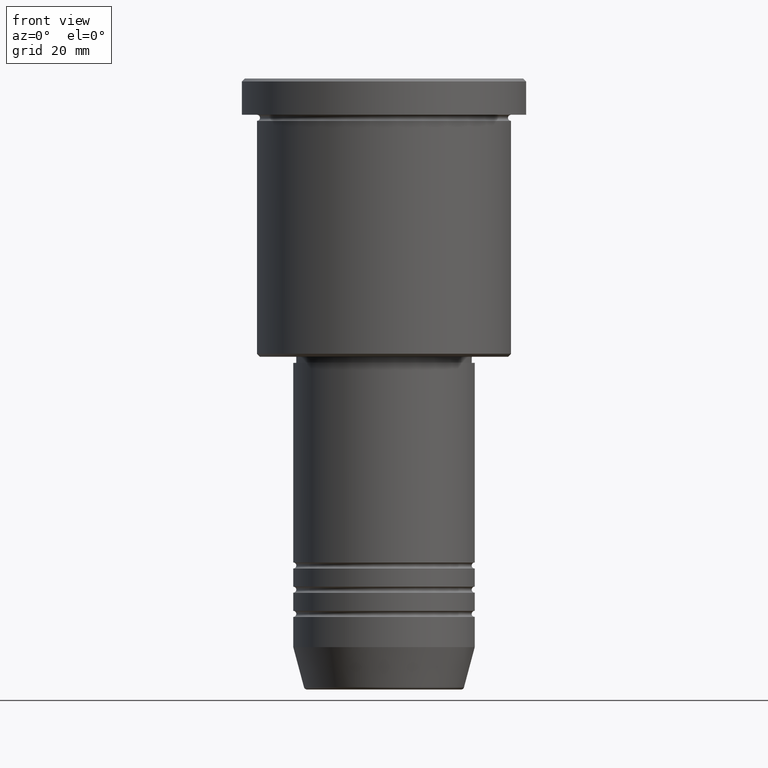
[diagram: clean part render]
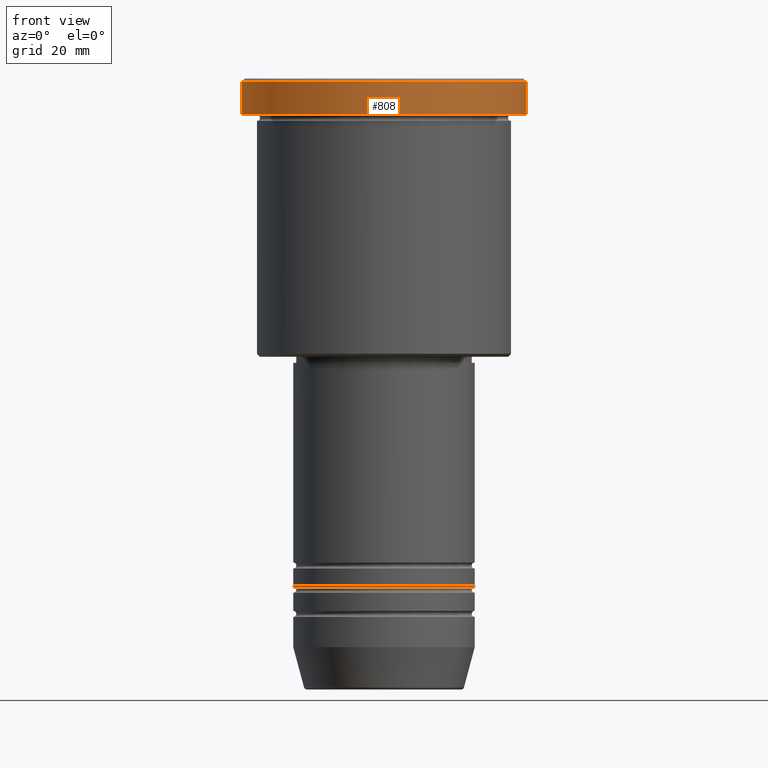
[diagram: same view with one face highlighted and labeled with its STEP entity id]
A machine part, front view. The second image highlights one B-rep face of the part: STEP entity #808.
In plain terms, the highlighted cylindrical surface (partial cylindrical patch) has radius 23.5 mm, axis along (-0, -0, 1).
Its self-contained STEP definition (entity closure, byte-faithful):
#105 = EDGE_CURVE ( 'NONE', #1106, #488, #578, .T. ) ;
#134 = CARTESIAN_POINT ( 'NONE',  ( 23.50000000000000000, 0.000000000000000000, -5.999999999999993783 ) ) ;
#179 = EDGE_CURVE ( 'NONE', #415, #1106, #1000, .T. ) ;
#197 = DIRECTION ( 'NONE',  ( -0.000000000000000000, -0.000000000000000000, 1.000000000000000000 ) ) ;
#200 = EDGE_LOOP ( 'NONE', ( #961, #665, #462, #330 ) ) ;
#220 = CARTESIAN_POINT ( 'NONE',  ( -23.50000000000000000, 2.877919977996280320E-15, 0.000000000000000000 ) ) ;
#239 = CARTESIAN_POINT ( 'NONE',  ( 0.000000000000000000, 0.000000000000000000, -0.5000000000000281997 ) ) ;
#253 = DIRECTION ( 'NONE',  ( 0.000000000000000000, 0.000000000000000000, -1.000000000000000000 ) ) ;
#286 = DIRECTION ( 'NONE',  ( -0.000000000000000000, -0.000000000000000000, 1.000000000000000000 ) ) ;
#330 = ORIENTED_EDGE ( 'NONE', *, *, #342, .T. ) ;
#342 = EDGE_CURVE ( 'NONE', #488, #1102, #985, .T. ) ;
#384 = LINE ( 'NONE', #220, #588 ) ;
#415 = VERTEX_POINT ( 'NONE', #446 ) ;
#446 = CARTESIAN_POINT ( 'NONE',  ( -23.50000000000000000, 2.877919977996280320E-15, -5.999999999999993783 ) ) ;
#459 = CARTESIAN_POINT ( 'NONE',  ( 0.000000000000000000, 0.000000000000000000, 0.000000000000000000 ) ) ;
#462 = ORIENTED_EDGE ( 'NONE', *, *, #105, .T. ) ;
#470 = CYLINDRICAL_SURFACE ( 'NONE', #784, 23.50000000000000000 ) ;
#488 = VERTEX_POINT ( 'NONE', #716 ) ;
#578 = LINE ( 'NONE', #671, #908 ) ;
#588 = VECTOR ( 'NONE', #647, 1000.000000000000000 ) ;
#603 = DIRECTION ( 'NONE',  ( 1.000000000000000000, 0.000000000000000000, 0.000000000000000000 ) ) ;
#623 = DIRECTION ( 'NONE',  ( 1.000000000000000000, 0.000000000000000000, 0.000000000000000000 ) ) ;
#647 = DIRECTION ( 'NONE',  ( -0.000000000000000000, -0.000000000000000000, 1.000000000000000000 ) ) ;
#665 = ORIENTED_EDGE ( 'NONE', *, *, #179, .T. ) ;
#671 = CARTESIAN_POINT ( 'NONE',  ( 23.50000000000000000, 0.000000000000000000, 0.000000000000000000 ) ) ;
#716 = CARTESIAN_POINT ( 'NONE',  ( 23.50000000000000000, 0.000000000000000000, -0.5000000000000281997 ) ) ;
#781 = AXIS2_PLACEMENT_3D ( 'NONE', #838, #286, #1127 ) ;
#784 = AXIS2_PLACEMENT_3D ( 'NONE', #459, #813, #623 ) ;
#808 = ADVANCED_FACE ( 'NONE', ( #909 ), #470, .T. ) ;
#813 = DIRECTION ( 'NONE',  ( -0.000000000000000000, -0.000000000000000000, 1.000000000000000000 ) ) ;
#838 = CARTESIAN_POINT ( 'NONE',  ( 0.000000000000000000, 0.000000000000000000, -5.999999999999993783 ) ) ;
#908 = VECTOR ( 'NONE', #197, 1000.000000000000000 ) ;
#909 = FACE_OUTER_BOUND ( 'NONE', #200, .T. ) ;
#919 = EDGE_CURVE ( 'NONE', #415, #1102, #384, .T. ) ;
#961 = ORIENTED_EDGE ( 'NONE', *, *, #919, .F. ) ;
#985 = CIRCLE ( 'NONE', #1116, 23.50000000000000000 ) ;
#1000 = CIRCLE ( 'NONE', #781, 23.50000000000000000 ) ;
#1102 = VERTEX_POINT ( 'NONE', #1132 ) ;
#1106 = VERTEX_POINT ( 'NONE', #134 ) ;
#1116 = AXIS2_PLACEMENT_3D ( 'NONE', #239, #253, #603 ) ;
#1127 = DIRECTION ( 'NONE',  ( 1.000000000000000000, 0.000000000000000000, 0.000000000000000000 ) ) ;
#1132 = CARTESIAN_POINT ( 'NONE',  ( -23.50000000000000000, 2.877919977996280320E-15, -0.5000000000000281997 ) ) ;